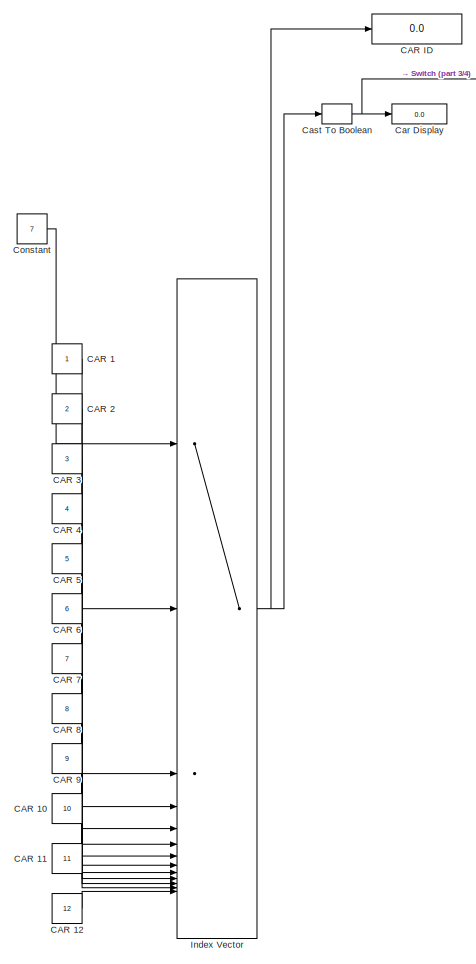
[diagram: root canvas - part 1/4, left side, full height]
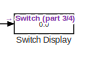
[diagram: root canvas - part 2/4, top left region]
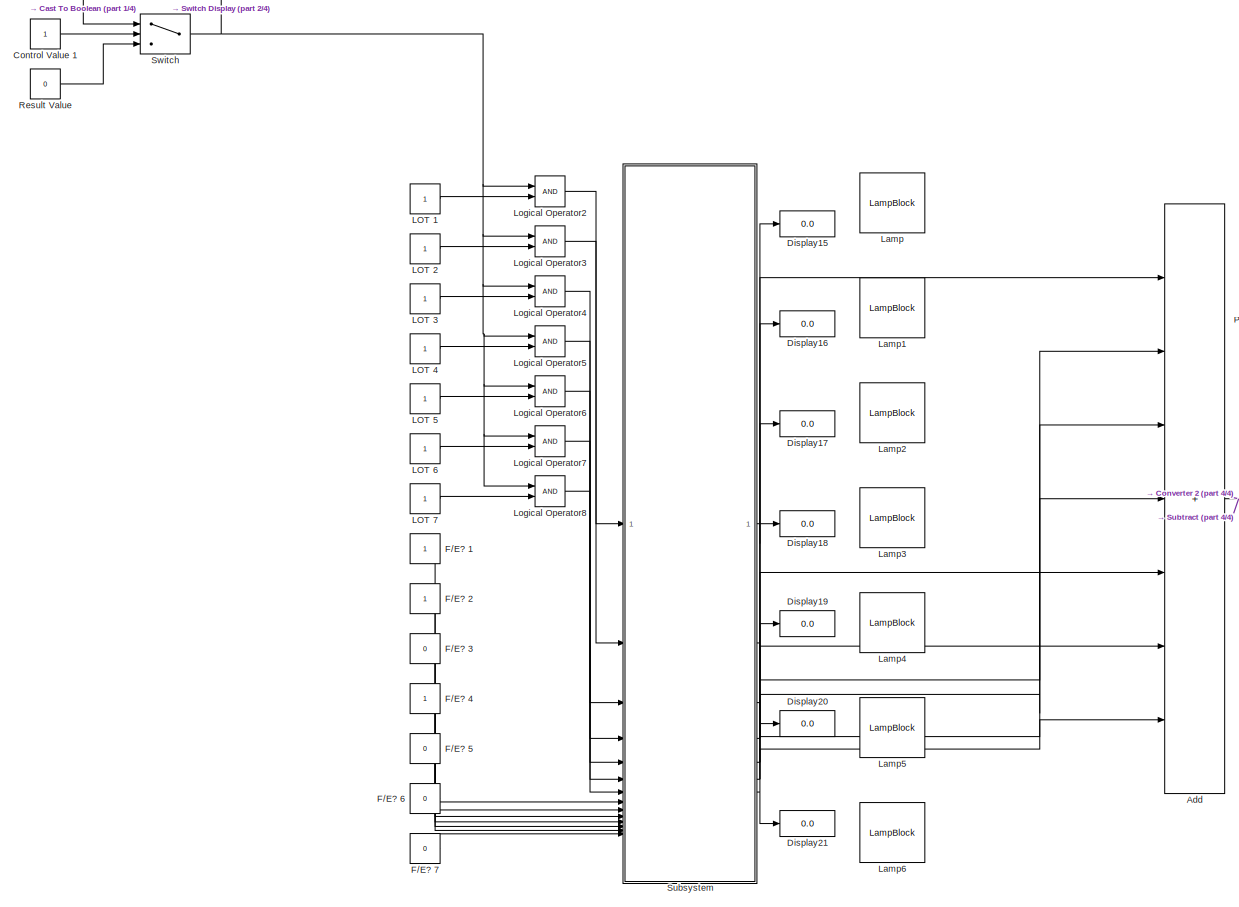
[diagram: root canvas - part 3/4, center side, full height]
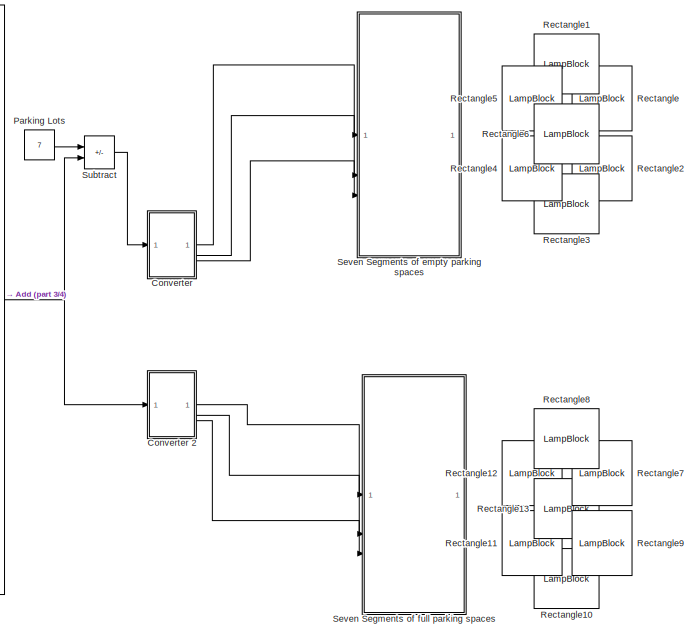
[diagram: root canvas - part 4/4, middle right region]
MODEL slx_5837f2981988
KIND model
CONFIG AbsTol = auto
CONFIG EnableMultiTasking = off
CONFIG FixedStep = auto
CONFIG MaxStep = auto
CONFIG MinStep = auto
CONFIG RelTol = 1e-3
CONFIG SampleTimeConstraint = Unconstrained
CONFIG SolverName = VariableStepAuto
CONFIG StartTime = 0.0
CONFIG StopTime = 10.0
BLOCK [Sum] Add
  IconShape = rectangular
  Inputs = +++++++
BLOCK [Constant] CAR 1
BLOCK [Constant] CAR 10
  Value = 10
BLOCK [Constant] CAR 11
  Value = 11
BLOCK [Constant] CAR 12
  Value = 12
BLOCK [Constant] CAR 2
  Value = 2
BLOCK [Constant] CAR 3
  Value = 3
BLOCK [Constant] CAR 4
  Value = 4
BLOCK [Constant] CAR 5
  Value = 5
BLOCK [Constant] CAR 6
  Value = 6
BLOCK [Constant] CAR 7
  Value = 7
BLOCK [Constant] CAR 8
  Value = 8
BLOCK [Constant] CAR 9
  Value = 9
BLOCK [Display] CAR ID 
  Decimation = 1
BLOCK [Display] Car Display
  Decimation = 1
BLOCK [DataTypeConversion] Cast To Boolean
  OutDataTypeStr = boolean
  RndMeth = Floor
  SaturateOnIntegerOverflow = off
BLOCK [Constant] Constant
  Value = 7
BLOCK [Constant] Control Value 1
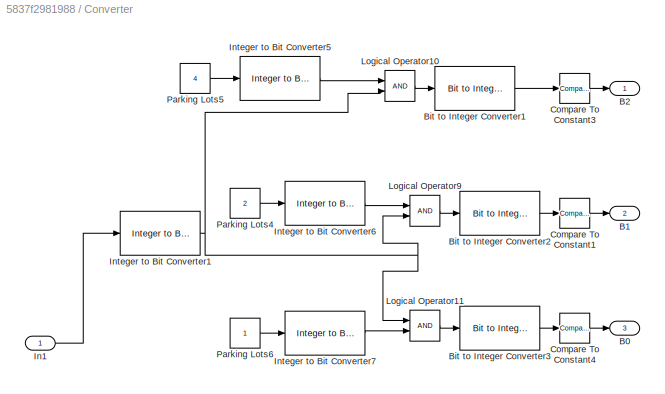
BLOCK [SubSystem] Converter
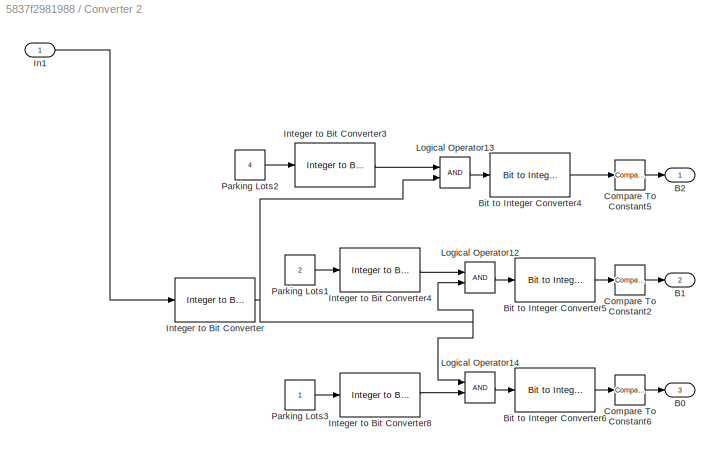
BLOCK [SubSystem] Converter 2
BLOCK [Outport] Converter 2/B0
  Port = 3
BLOCK [Outport] Converter 2/B1
  Port = 2
BLOCK [Outport] Converter 2/B2
BLOCK [Reference] Converter 2/Bit to Integer Converter4  REF=simulink/Logic and Bit
Operations/Bit to Integer
Converter
  SourceBlock = simulink/Logic and Bit\nOperations/Bit to Integer\nConverter
  SourceType = Bit to Integer Converter
BLOCK [Reference] Converter 2/Bit to Integer Converter5  REF=simulink/Logic and Bit
Operations/Bit to Integer
Converter
  SourceBlock = simulink/Logic and Bit\nOperations/Bit to Integer\nConverter
  SourceType = Bit to Integer Converter
BLOCK [Reference] Converter 2/Bit to Integer Converter6  REF=simulink/Logic and Bit
Operations/Bit to Integer
Converter
  SourceBlock = simulink/Logic and Bit\nOperations/Bit to Integer\nConverter
  SourceType = Bit to Integer Converter
BLOCK [Reference] Converter 2/Compare To Constant2  REF=simulink/Logic and Bit
Operations/Compare
To Constant
  SourceBlock = simulink/Logic and Bit\nOperations/Compare\nTo Constant
  SourceType = Compare To Constant
BLOCK [Reference] Converter 2/Compare To Constant5  REF=simulink/Logic and Bit
Operations/Compare
To Constant
  SourceBlock = simulink/Logic and Bit\nOperations/Compare\nTo Constant
  SourceType = Compare To Constant
BLOCK [Reference] Converter 2/Compare To Constant6  REF=simulink/Logic and Bit
Operations/Compare
To Constant
  SourceBlock = simulink/Logic and Bit\nOperations/Compare\nTo Constant
  SourceType = Compare To Constant
BLOCK [Inport] Converter 2/In1
BLOCK [Reference] Converter 2/Integer to Bit Converter  REF=simulink/Logic and Bit
Operations/Integer to Bit
Converter
  SourceBlock = simulink/Logic and Bit\nOperations/Integer to Bit\nConverter
  SourceType = Integer to Bit Converter
BLOCK [Reference] Converter 2/Integer to Bit Converter3  REF=simulink/Logic and Bit
Operations/Integer to Bit
Converter
  SourceBlock = simulink/Logic and Bit\nOperations/Integer to Bit\nConverter
  SourceType = Integer to Bit Converter
BLOCK [Reference] Converter 2/Integer to Bit Converter4  REF=simulink/Logic and Bit
Operations/Integer to Bit
Converter
  SourceBlock = simulink/Logic and Bit\nOperations/Integer to Bit\nConverter
  SourceType = Integer to Bit Converter
BLOCK [Reference] Converter 2/Integer to Bit Converter8  REF=simulink/Logic and Bit
Operations/Integer to Bit
Converter
  SourceBlock = simulink/Logic and Bit\nOperations/Integer to Bit\nConverter
  SourceType = Integer to Bit Converter
BLOCK [Logic] Converter 2/Logical Operator12
  AllPortsSameDT = off
  OutDataTypeStr = boolean
BLOCK [Logic] Converter 2/Logical Operator13
  AllPortsSameDT = off
  OutDataTypeStr = boolean
BLOCK [Logic] Converter 2/Logical Operator14
  AllPortsSameDT = off
  OutDataTypeStr = boolean
BLOCK [Constant] Converter 2/Parking Lots1
  Value = 2
BLOCK [Constant] Converter 2/Parking Lots2
  Value = 4
BLOCK [Constant] Converter 2/Parking Lots3
BLOCK [Outport] Converter/B0
  Port = 3
BLOCK [Outport] Converter/B1
  Port = 2
BLOCK [Outport] Converter/B2
BLOCK [Reference] Converter/Bit to Integer Converter1  REF=simulink/Logic and Bit
Operations/Bit to Integer
Converter
  SourceBlock = simulink/Logic and Bit\nOperations/Bit to Integer\nConverter
  SourceType = Bit to Integer Converter
BLOCK [Reference] Converter/Bit to Integer Converter2  REF=simulink/Logic and Bit
Operations/Bit to Integer
Converter
  SourceBlock = simulink/Logic and Bit\nOperations/Bit to Integer\nConverter
  SourceType = Bit to Integer Converter
BLOCK [Reference] Converter/Bit to Integer Converter3  REF=simulink/Logic and Bit
Operations/Bit to Integer
Converter
  SourceBlock = simulink/Logic and Bit\nOperations/Bit to Integer\nConverter
  SourceType = Bit to Integer Converter
BLOCK [Reference] Converter/Compare To Constant1  REF=simulink/Logic and Bit
Operations/Compare
To Constant
  SourceBlock = simulink/Logic and Bit\nOperations/Compare\nTo Constant
  SourceType = Compare To Constant
BLOCK [Reference] Converter/Compare To Constant3  REF=simulink/Logic and Bit
Operations/Compare
To Constant
  SourceBlock = simulink/Logic and Bit\nOperations/Compare\nTo Constant
  SourceType = Compare To Constant
BLOCK [Reference] Converter/Compare To Constant4  REF=simulink/Logic and Bit
Operations/Compare
To Constant
  SourceBlock = simulink/Logic and Bit\nOperations/Compare\nTo Constant
  SourceType = Compare To Constant
BLOCK [Inport] Converter/In1
BLOCK [Reference] Converter/Integer to Bit Converter1  REF=simulink/Logic and Bit
Operations/Integer to Bit
Converter
  SourceBlock = simulink/Logic and Bit\nOperations/Integer to Bit\nConverter
  SourceType = Integer to Bit Converter
BLOCK [Reference] Converter/Integer to Bit Converter5  REF=simulink/Logic and Bit
Operations/Integer to Bit
Converter
  SourceBlock = simulink/Logic and Bit\nOperations/Integer to Bit\nConverter
  SourceType = Integer to Bit Converter
BLOCK [Reference] Converter/Integer to Bit Converter6  REF=simulink/Logic and Bit
Operations/Integer to Bit
Converter
  SourceBlock = simulink/Logic and Bit\nOperations/Integer to Bit\nConverter
  SourceType = Integer to Bit Converter
BLOCK [Reference] Converter/Integer to Bit Converter7  REF=simulink/Logic and Bit
Operations/Integer to Bit
Converter
  SourceBlock = simulink/Logic and Bit\nOperations/Integer to Bit\nConverter
  SourceType = Integer to Bit Converter
BLOCK [Logic] Converter/Logical Operator10
  AllPortsSameDT = off
  OutDataTypeStr = boolean
BLOCK [Logic] Converter/Logical Operator11
  AllPortsSameDT = off
  OutDataTypeStr = boolean
BLOCK [Logic] Converter/Logical Operator9
  AllPortsSameDT = off
  OutDataTypeStr = boolean
BLOCK [Constant] Converter/Parking Lots4
  Value = 2
BLOCK [Constant] Converter/Parking Lots5
  Value = 4
BLOCK [Constant] Converter/Parking Lots6
BLOCK [Display] Display15
  Decimation = 1
BLOCK [Display] Display16
  Decimation = 1
BLOCK [Display] Display17
  Decimation = 1
BLOCK [Display] Display18
  Decimation = 1
BLOCK [Display] Display19
  Decimation = 1
BLOCK [Display] Display20
  Decimation = 1
BLOCK [Display] Display21
  Decimation = 1
BLOCK [Constant] F//E? 1
BLOCK [Constant] F//E? 2
BLOCK [Constant] F//E? 3
  Value = 0
BLOCK [Constant] F//E? 4
BLOCK [Constant] F//E? 5
  Value = 0
BLOCK [Constant] F//E? 6 
  Value = 0
BLOCK [Constant] F//E? 7
  Value = 0
BLOCK [MultiPortSwitch] Index Vector
  DataPortOrder = Zero-based contiguous
  InputSameDT = off
  Inputs = 12
  SaturateOnIntegerOverflow = off
  zeroidx = on
BLOCK [Constant] LOT 1
BLOCK [Constant] LOT 2
BLOCK [Constant] LOT 3
BLOCK [Constant] LOT 4
BLOCK [Constant] LOT 5
BLOCK [Constant] LOT 6
BLOCK [Constant] LOT 7
BLOCK [LampBlock] Lamp
  LabelPosition = Hide
BLOCK [LampBlock] Lamp1
  LabelPosition = Hide
BLOCK [LampBlock] Lamp2
  LabelPosition = Hide
BLOCK [LampBlock] Lamp3
  LabelPosition = Hide
BLOCK [LampBlock] Lamp4
  LabelPosition = Hide
BLOCK [LampBlock] Lamp5
  LabelPosition = Hide
BLOCK [LampBlock] Lamp6
  LabelPosition = Hide
BLOCK [Logic] Logical Operator2
  AllPortsSameDT = off
  OutDataTypeStr = boolean
BLOCK [Logic] Logical Operator3
  AllPortsSameDT = off
  OutDataTypeStr = boolean
BLOCK [Logic] Logical Operator4
  AllPortsSameDT = off
  OutDataTypeStr = boolean
BLOCK [Logic] Logical Operator5
  AllPortsSameDT = off
  OutDataTypeStr = boolean
BLOCK [Logic] Logical Operator6
  AllPortsSameDT = off
  OutDataTypeStr = boolean
BLOCK [Logic] Logical Operator7
  AllPortsSameDT = off
  OutDataTypeStr = boolean
BLOCK [Logic] Logical Operator8
  AllPortsSameDT = off
  OutDataTypeStr = boolean
BLOCK [Constant] Parking Lots
  Value = 7
BLOCK [LampBlock] Rectangle
  Icon = Rectangle
  LabelPosition = Hide
  NameLocation = left
BLOCK [LampBlock] Rectangle1
  Icon = Rectangle
  LabelPosition = Hide
BLOCK [LampBlock] Rectangle10
  Icon = Rectangle
  LabelPosition = Hide
BLOCK [LampBlock] Rectangle11
  Icon = Rectangle
  LabelPosition = Hide
  NameLocation = left
BLOCK [LampBlock] Rectangle12
  Icon = Rectangle
  LabelPosition = Hide
  NameLocation = left
BLOCK [LampBlock] Rectangle13
  Icon = Rectangle
  LabelPosition = Hide
BLOCK [LampBlock] Rectangle2
  Icon = Rectangle
  LabelPosition = Hide
  NameLocation = left
BLOCK [LampBlock] Rectangle3
  Icon = Rectangle
  LabelPosition = Hide
BLOCK [LampBlock] Rectangle4
  Icon = Rectangle
  LabelPosition = Hide
  NameLocation = left
BLOCK [LampBlock] Rectangle5
  Icon = Rectangle
  LabelPosition = Hide
  NameLocation = left
BLOCK [LampBlock] Rectangle6
  Icon = Rectangle
  LabelPosition = Hide
BLOCK [LampBlock] Rectangle7
  Icon = Rectangle
  LabelPosition = Hide
  NameLocation = left
BLOCK [LampBlock] Rectangle8
  Icon = Rectangle
  LabelPosition = Hide
BLOCK [LampBlock] Rectangle9
  Icon = Rectangle
  LabelPosition = Hide
  NameLocation = left
BLOCK [Constant] Result Value
  Value = 0
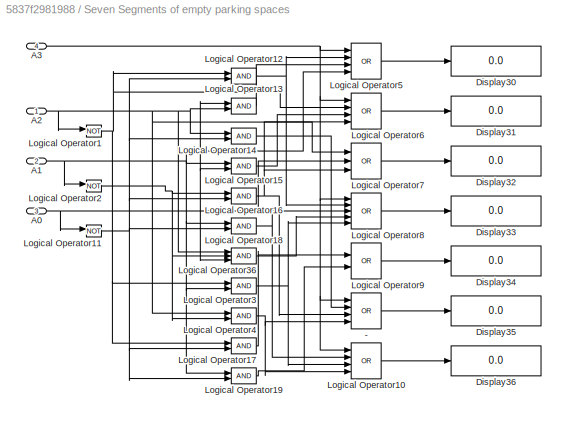
BLOCK [SubSystem] Seven Segments of empty parking spaces
BLOCK [Logic] Seven Segments of empty parking spaces/   -
  AllPortsSameDT = off
  Inputs = 4
  Operator = OR
  OutDataTypeStr = boolean
BLOCK [Inport] Seven Segments of empty parking spaces/A0
  Port = 3
BLOCK [Inport] Seven Segments of empty parking spaces/A1
  Port = 2
BLOCK [Inport] Seven Segments of empty parking spaces/A2
BLOCK [Inport] Seven Segments of empty parking spaces/A3
  Port = 4
BLOCK [Display] Seven Segments of empty parking spaces/Display30
  Decimation = 1
BLOCK [Display] Seven Segments of empty parking spaces/Display31
  Decimation = 1
BLOCK [Display] Seven Segments of empty parking spaces/Display32
  Decimation = 1
BLOCK [Display] Seven Segments of empty parking spaces/Display33
  Decimation = 1
BLOCK [Display] Seven Segments of empty parking spaces/Display34
  Decimation = 1
BLOCK [Display] Seven Segments of empty parking spaces/Display35
  Decimation = 1
BLOCK [Display] Seven Segments of empty parking spaces/Display36
  Decimation = 1
BLOCK [Logic] Seven Segments of empty parking spaces/Logical Operator1
  AllPortsSameDT = off
  Operator = NOT
  OutDataTypeStr = boolean
BLOCK [Logic] Seven Segments of empty parking spaces/Logical Operator10
  AllPortsSameDT = off
  Inputs = 4
  Operator = OR
  OutDataTypeStr = boolean
BLOCK [Logic] Seven Segments of empty parking spaces/Logical Operator11
  AllPortsSameDT = off
  Operator = NOT
  OutDataTypeStr = boolean
BLOCK [Logic] Seven Segments of empty parking spaces/Logical Operator12
  AllPortsSameDT = off
  OutDataTypeStr = boolean
BLOCK [Logic] Seven Segments of empty parking spaces/Logical Operator13
  AllPortsSameDT = off
  OutDataTypeStr = boolean
BLOCK [Logic] Seven Segments of empty parking spaces/Logical Operator14
  AllPortsSameDT = off
  OutDataTypeStr = boolean
BLOCK [Logic] Seven Segments of empty parking spaces/Logical Operator15
  AllPortsSameDT = off
  OutDataTypeStr = boolean
BLOCK [Logic] Seven Segments of empty parking spaces/Logical Operator16
  AllPortsSameDT = off
  OutDataTypeStr = boolean
BLOCK [Logic] Seven Segments of empty parking spaces/Logical Operator17
  AllPortsSameDT = off
  OutDataTypeStr = boolean
BLOCK [Logic] Seven Segments of empty parking spaces/Logical Operator18
  AllPortsSameDT = off
  OutDataTypeStr = boolean
BLOCK [Logic] Seven Segments of empty parking spaces/Logical Operator19
  AllPortsSameDT = off
  OutDataTypeStr = boolean
BLOCK [Logic] Seven Segments of empty parking spaces/Logical Operator2
  AllPortsSameDT = off
  Operator = NOT
  OutDataTypeStr = boolean
BLOCK [Logic] Seven Segments of empty parking spaces/Logical Operator3
  AllPortsSameDT = off
  OutDataTypeStr = boolean
BLOCK [Logic] Seven Segments of empty parking spaces/Logical Operator36
  AllPortsSameDT = off
  Inputs = 3
  OutDataTypeStr = boolean
BLOCK [Logic] Seven Segments of empty parking spaces/Logical Operator4
  AllPortsSameDT = off
  OutDataTypeStr = boolean
BLOCK [Logic] Seven Segments of empty parking spaces/Logical Operator5
  AllPortsSameDT = off
  Inputs = 4
  Operator = OR
  OutDataTypeStr = boolean
BLOCK [Logic] Seven Segments of empty parking spaces/Logical Operator6
  AllPortsSameDT = off
  Inputs = 4
  Operator = OR
  OutDataTypeStr = boolean
BLOCK [Logic] Seven Segments of empty parking spaces/Logical Operator7
  AllPortsSameDT = off
  Inputs = 3
  Operator = OR
  OutDataTypeStr = boolean
BLOCK [Logic] Seven Segments of empty parking spaces/Logical Operator8
  AllPortsSameDT = off
  Inputs = 5
  Operator = OR
  OutDataTypeStr = boolean
BLOCK [Logic] Seven Segments of empty parking spaces/Logical Operator9
  AllPortsSameDT = off
  Operator = OR
  OutDataTypeStr = boolean
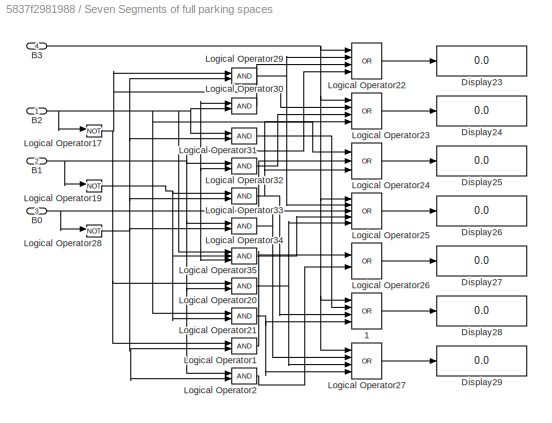
BLOCK [SubSystem] Seven Segments of full parking spaces
BLOCK [Logic] Seven Segments of full parking spaces/   1
  AllPortsSameDT = off
  Inputs = 4
  Operator = OR
  OutDataTypeStr = boolean
BLOCK [Inport] Seven Segments of full parking spaces/B0
  Port = 3
BLOCK [Inport] Seven Segments of full parking spaces/B1
  Port = 2
BLOCK [Inport] Seven Segments of full parking spaces/B2
BLOCK [Inport] Seven Segments of full parking spaces/B3
  Port = 4
BLOCK [Display] Seven Segments of full parking spaces/Display23
  Decimation = 1
BLOCK [Display] Seven Segments of full parking spaces/Display24
  Decimation = 1
BLOCK [Display] Seven Segments of full parking spaces/Display25
  Decimation = 1
BLOCK [Display] Seven Segments of full parking spaces/Display26
  Decimation = 1
BLOCK [Display] Seven Segments of full parking spaces/Display27
  Decimation = 1
BLOCK [Display] Seven Segments of full parking spaces/Display28
  Decimation = 1
BLOCK [Display] Seven Segments of full parking spaces/Display29
  Decimation = 1
BLOCK [Logic] Seven Segments of full parking spaces/Logical Operator1
  AllPortsSameDT = off
  OutDataTypeStr = boolean
BLOCK [Logic] Seven Segments of full parking spaces/Logical Operator17
  AllPortsSameDT = off
  Operator = NOT
  OutDataTypeStr = boolean
BLOCK [Logic] Seven Segments of full parking spaces/Logical Operator19
  AllPortsSameDT = off
  Operator = NOT
  OutDataTypeStr = boolean
BLOCK [Logic] Seven Segments of full parking spaces/Logical Operator2
  AllPortsSameDT = off
  OutDataTypeStr = boolean
BLOCK [Logic] Seven Segments of full parking spaces/Logical Operator20
  AllPortsSameDT = off
  OutDataTypeStr = boolean
BLOCK [Logic] Seven Segments of full parking spaces/Logical Operator21
  AllPortsSameDT = off
  OutDataTypeStr = boolean
BLOCK [Logic] Seven Segments of full parking spaces/Logical Operator22
  AllPortsSameDT = off
  Inputs = 4
  Operator = OR
  OutDataTypeStr = boolean
BLOCK [Logic] Seven Segments of full parking spaces/Logical Operator23
  AllPortsSameDT = off
  Inputs = 4
  Operator = OR
  OutDataTypeStr = boolean
BLOCK [Logic] Seven Segments of full parking spaces/Logical Operator24
  AllPortsSameDT = off
  Inputs = 3
  Operator = OR
  OutDataTypeStr = boolean
BLOCK [Logic] Seven Segments of full parking spaces/Logical Operator25
  AllPortsSameDT = off
  Inputs = 5
  Operator = OR
  OutDataTypeStr = boolean
BLOCK [Logic] Seven Segments of full parking spaces/Logical Operator26
  AllPortsSameDT = off
  Operator = OR
  OutDataTypeStr = boolean
BLOCK [Logic] Seven Segments of full parking spaces/Logical Operator27
  AllPortsSameDT = off
  Inputs = 4
  Operator = OR
  OutDataTypeStr = boolean
BLOCK [Logic] Seven Segments of full parking spaces/Logical Operator28
  AllPortsSameDT = off
  Operator = NOT
  OutDataTypeStr = boolean
BLOCK [Logic] Seven Segments of full parking spaces/Logical Operator29
  AllPortsSameDT = off
  OutDataTypeStr = boolean
BLOCK [Logic] Seven Segments of full parking spaces/Logical Operator30
  AllPortsSameDT = off
  OutDataTypeStr = boolean
BLOCK [Logic] Seven Segments of full parking spaces/Logical Operator31
  AllPortsSameDT = off
  OutDataTypeStr = boolean
BLOCK [Logic] Seven Segments of full parking spaces/Logical Operator32
  AllPortsSameDT = off
  OutDataTypeStr = boolean
BLOCK [Logic] Seven Segments of full parking spaces/Logical Operator33
  AllPortsSameDT = off
  OutDataTypeStr = boolean
BLOCK [Logic] Seven Segments of full parking spaces/Logical Operator34
  AllPortsSameDT = off
  OutDataTypeStr = boolean
BLOCK [Logic] Seven Segments of full parking spaces/Logical Operator35
  AllPortsSameDT = off
  Inputs = 3
  OutDataTypeStr = boolean
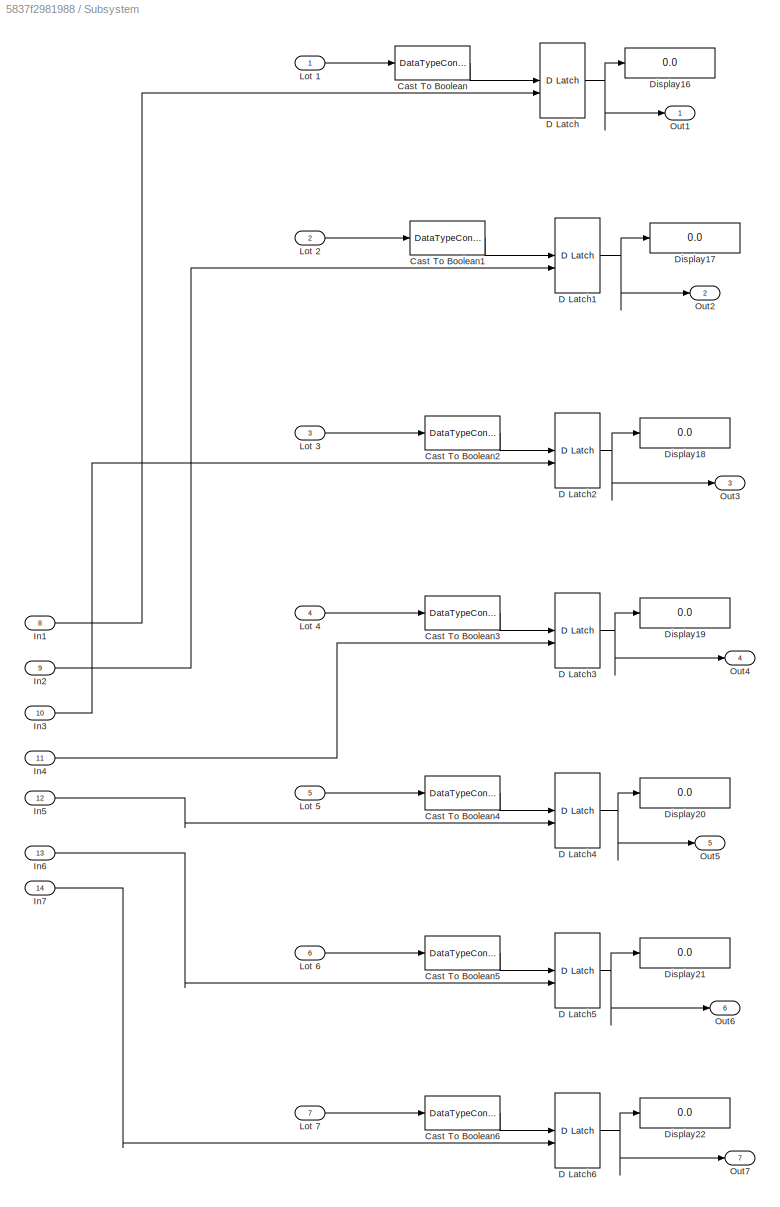
BLOCK [SubSystem] Subsystem
BLOCK [DataTypeConversion] Subsystem/Cast To Boolean
  OutDataTypeStr = boolean
  RndMeth = Floor
  SaturateOnIntegerOverflow = off
BLOCK [DataTypeConversion] Subsystem/Cast To Boolean1
  OutDataTypeStr = boolean
  RndMeth = Floor
  SaturateOnIntegerOverflow = off
BLOCK [DataTypeConversion] Subsystem/Cast To Boolean2
  OutDataTypeStr = boolean
  RndMeth = Floor
  SaturateOnIntegerOverflow = off
BLOCK [DataTypeConversion] Subsystem/Cast To Boolean3
  OutDataTypeStr = boolean
  RndMeth = Floor
  SaturateOnIntegerOverflow = off
BLOCK [DataTypeConversion] Subsystem/Cast To Boolean4
  OutDataTypeStr = boolean
  RndMeth = Floor
  SaturateOnIntegerOverflow = off
BLOCK [DataTypeConversion] Subsystem/Cast To Boolean5
  OutDataTypeStr = boolean
  RndMeth = Floor
  SaturateOnIntegerOverflow = off
BLOCK [DataTypeConversion] Subsystem/Cast To Boolean6
  OutDataTypeStr = boolean
  RndMeth = Floor
  SaturateOnIntegerOverflow = off
BLOCK [Reference] Subsystem/D Latch  REF=simulink_extras/Flip Flops/D Latch
  SourceBlock = simulink_extras/Flip Flops/D Latch
  SourceType = DLatch
BLOCK [Reference] Subsystem/D Latch1  REF=simulink_extras/Flip Flops/D Latch
  SourceBlock = simulink_extras/Flip Flops/D Latch
  SourceType = DLatch
BLOCK [Reference] Subsystem/D Latch2  REF=simulink_extras/Flip Flops/D Latch
  SourceBlock = simulink_extras/Flip Flops/D Latch
  SourceType = DLatch
BLOCK [Reference] Subsystem/D Latch3  REF=simulink_extras/Flip Flops/D Latch
  SourceBlock = simulink_extras/Flip Flops/D Latch
  SourceType = DLatch
BLOCK [Reference] Subsystem/D Latch4  REF=simulink_extras/Flip Flops/D Latch
  SourceBlock = simulink_extras/Flip Flops/D Latch
  SourceType = DLatch
BLOCK [Reference] Subsystem/D Latch5  REF=simulink_extras/Flip Flops/D Latch
  SourceBlock = simulink_extras/Flip Flops/D Latch
  SourceType = DLatch
BLOCK [Reference] Subsystem/D Latch6  REF=simulink_extras/Flip Flops/D Latch
  SourceBlock = simulink_extras/Flip Flops/D Latch
  SourceType = DLatch
BLOCK [Display] Subsystem/Display16
  Decimation = 1
BLOCK [Display] Subsystem/Display17
  Decimation = 1
BLOCK [Display] Subsystem/Display18
  Decimation = 1
BLOCK [Display] Subsystem/Display19
  Decimation = 1
BLOCK [Display] Subsystem/Display20
  Decimation = 1
BLOCK [Display] Subsystem/Display21
  Decimation = 1
BLOCK [Display] Subsystem/Display22
  Decimation = 1
BLOCK [Inport] Subsystem/In1
  Port = 8
BLOCK [Inport] Subsystem/In2
  Port = 9
BLOCK [Inport] Subsystem/In3
  Port = 10
BLOCK [Inport] Subsystem/In4
  Port = 11
BLOCK [Inport] Subsystem/In5
  Port = 12
BLOCK [Inport] Subsystem/In6
  Port = 13
BLOCK [Inport] Subsystem/In7
  Port = 14
BLOCK [Inport] Subsystem/Lot 1
BLOCK [Inport] Subsystem/Lot 2
  Port = 2
BLOCK [Inport] Subsystem/Lot 3
  Port = 3
BLOCK [Inport] Subsystem/Lot 4
  Port = 4
BLOCK [Inport] Subsystem/Lot 5
  Port = 5
BLOCK [Inport] Subsystem/Lot 6
  Port = 6
BLOCK [Inport] Subsystem/Lot 7
  Port = 7
BLOCK [Outport] Subsystem/Out1
BLOCK [Outport] Subsystem/Out2
  Port = 2
BLOCK [Outport] Subsystem/Out3
  Port = 3
BLOCK [Outport] Subsystem/Out4
  Port = 4
BLOCK [Outport] Subsystem/Out5
  Port = 5
BLOCK [Outport] Subsystem/Out6
  Port = 6
BLOCK [Outport] Subsystem/Out7
  Port = 7
BLOCK [Sum] Subtract
  IconShape = rectangular
  Inputs = +-
BLOCK [Switch] Switch
  Criteria = u2 > Threshold
  InputSameDT = off
  SaturateOnIntegerOverflow = off
BLOCK [Display] Switch Display
  Decimation = 1
NET Add:1 -> Converter 2:1, Subtract:2
LINE CAR 10:1 -> Index Vector:11
LINE CAR 11:1 -> Index Vector:12
LINE CAR 12:1 -> Index Vector:13
LINE CAR 1:1 -> Index Vector:2
LINE CAR 2:1 -> Index Vector:3
LINE CAR 3:1 -> Index Vector:4
LINE CAR 4:1 -> Index Vector:5
LINE CAR 5:1 -> Index Vector:6
LINE CAR 6:1 -> Index Vector:7
LINE CAR 7:1 -> Index Vector:8
LINE CAR 8:1 -> Index Vector:9
LINE CAR 9:1 -> Index Vector:10
NET Cast To Boolean:1 -> Car Display:1, Switch:1
LINE Constant:1 -> Index Vector:1
LINE Control Value 1:1 -> Switch:2
LINE Converter 2/Bit to Integer Converter4:1 -> Converter 2/Compare To Constant5:1
LINE Converter 2/Bit to Integer Converter5:1 -> Converter 2/Compare To Constant2:1
LINE Converter 2/Bit to Integer Converter6:1 -> Converter 2/Compare To Constant6:1
LINE Converter 2/Compare To Constant2:1 -> Converter 2/B1:1
LINE Converter 2/Compare To Constant5:1 -> Converter 2/B2:1
LINE Converter 2/Compare To Constant6:1 -> Converter 2/B0:1
LINE Converter 2/In1:1 -> Converter 2/Integer to Bit Converter:1
LINE Converter 2/Integer to Bit Converter3:1 -> Converter 2/Logical Operator13:1
LINE Converter 2/Integer to Bit Converter4:1 -> Converter 2/Logical Operator12:1
LINE Converter 2/Integer to Bit Converter8:1 -> Converter 2/Logical Operator14:2
NET Converter 2/Integer to Bit Converter:1 -> Converter 2/Logical Operator12:2, Converter 2/Logical Operator13:2, Converter 2/Logical Operator14:1
LINE Converter 2/Logical Operator12:1 -> Converter 2/Bit to Integer Converter5:1
LINE Converter 2/Logical Operator13:1 -> Converter 2/Bit to Integer Converter4:1
LINE Converter 2/Logical Operator14:1 -> Converter 2/Bit to Integer Converter6:1
LINE Converter 2/Parking Lots1:1 -> Converter 2/Integer to Bit Converter4:1
LINE Converter 2/Parking Lots2:1 -> Converter 2/Integer to Bit Converter3:1
LINE Converter 2/Parking Lots3:1 -> Converter 2/Integer to Bit Converter8:1
LINE Converter 2:1 -> Seven Segments of full parking spaces:1
LINE Converter 2:2 -> Seven Segments of full parking spaces:2
LINE Converter 2:3 -> Seven Segments of full parking spaces:3
LINE Converter/Bit to Integer Converter1:1 -> Converter/Compare To Constant3:1
LINE Converter/Bit to Integer Converter2:1 -> Converter/Compare To Constant1:1
LINE Converter/Bit to Integer Converter3:1 -> Converter/Compare To Constant4:1
LINE Converter/Compare To Constant1:1 -> Converter/B1:1
LINE Converter/Compare To Constant3:1 -> Converter/B2:1
LINE Converter/Compare To Constant4:1 -> Converter/B0:1
LINE Converter/In1:1 -> Converter/Integer to Bit Converter1:1
NET Converter/Integer to Bit Converter1:1 -> Converter/Logical Operator10:2, Converter/Logical Operator11:1, Converter/Logical Operator9:2
LINE Converter/Integer to Bit Converter5:1 -> Converter/Logical Operator10:1
LINE Converter/Integer to Bit Converter6:1 -> Converter/Logical Operator9:1
LINE Converter/Integer to Bit Converter7:1 -> Converter/Logical Operator11:2
LINE Converter/Logical Operator10:1 -> Converter/Bit to Integer Converter1:1
LINE Converter/Logical Operator11:1 -> Converter/Bit to Integer Converter3:1
LINE Converter/Logical Operator9:1 -> Converter/Bit to Integer Converter2:1
LINE Converter/Parking Lots4:1 -> Converter/Integer to Bit Converter6:1
LINE Converter/Parking Lots5:1 -> Converter/Integer to Bit Converter5:1
LINE Converter/Parking Lots6:1 -> Converter/Integer to Bit Converter7:1
LINE Converter:1 -> Seven Segments of empty parking spaces:1
LINE Converter:2 -> Seven Segments of empty parking spaces:2
LINE Converter:3 -> Seven Segments of empty parking spaces:3
LINE F//E? 1:1 -> Subsystem:8
LINE F//E? 2:1 -> Subsystem:9
LINE F//E? 3:1 -> Subsystem:10
LINE F//E? 4:1 -> Subsystem:11
LINE F//E? 5:1 -> Subsystem:12
LINE F//E? 6 :1 -> Subsystem:13
LINE F//E? 7:1 -> Subsystem:14
NET Index Vector:1 -> CAR ID :1, Cast To Boolean:1
LINE LOT 1:1 -> Logical Operator2:2
LINE LOT 2:1 -> Logical Operator3:2
LINE LOT 3:1 -> Logical Operator4:2
LINE LOT 4:1 -> Logical Operator5:2
LINE LOT 5:1 -> Logical Operator6:2
LINE LOT 6:1 -> Logical Operator7:2
LINE LOT 7:1 -> Logical Operator8:2
LINE Logical Operator2:1 -> Subsystem:1
LINE Logical Operator3:1 -> Subsystem:2
LINE Logical Operator4:1 -> Subsystem:3
LINE Logical Operator5:1 -> Subsystem:4
LINE Logical Operator6:1 -> Subsystem:5
LINE Logical Operator7:1 -> Subsystem:6
LINE Logical Operator8:1 -> Subsystem:7
LINE Parking Lots:1 -> Subtract:1
LINE Result Value:1 -> Switch:3
LINE Seven Segments of empty parking spaces/   -:1 -> Seven Segments of empty parking spaces/Display35:1
NET Seven Segments of empty parking spaces/A0:1 -> Seven Segments of empty parking spaces/Logical Operator11:1, Seven Segments of empty parking spaces/Logical Operator13:1, Seven Segments of empty parking spaces/Logical Operator15:2, Seven Segments of empty parking spaces/Logical Operator36:3, Seven Segments of empty parking spaces/Logical Operator7:2
NET Seven Segments of empty parking spaces/A1:1 -> Seven Segments of empty parking spaces/Logical Operator15:1, Seven Segments of empty parking spaces/Logical Operator18:1, Seven Segments of empty parking spaces/Logical Operator19:1, Seven Segments of empty parking spaces/Logical Operator2:1, Seven Segments of empty parking spaces/Logical Operator3:2, Seven Segments of empty parking spaces/Logical Operator5:4
NET Seven Segments of empty parking spaces/A2:1 -> Seven Segments of empty parking spaces/Logical Operator13:2, Seven Segments of empty parking spaces/Logical Operator14:1, Seven Segments of empty parking spaces/Logical Operator1:1, Seven Segments of empty parking spaces/Logical Operator36:1, Seven Segments of empty parking spaces/Logical Operator4:1, Seven Segments of empty parking spaces/Logical Operator7:1
NET Seven Segments of empty parking spaces/A3:1 -> Seven Segments of empty parking spaces/   -:1, Seven Segments of empty parking spaces/Logical Operator10:1, Seven Segments of empty parking spaces/Logical Operator5:1, Seven Segments of empty parking spaces/Logical Operator6:1, Seven Segments of empty parking spaces/Logical Operator8:1
LINE Seven Segments of empty parking spaces/Logical Operator10:1 -> Seven Segments of empty parking spaces/Display36:1
NET Seven Segments of empty parking spaces/Logical Operator11:1 -> Seven Segments of empty parking spaces/Logical Operator12:2, Seven Segments of empty parking spaces/Logical Operator14:2, Seven Segments of empty parking spaces/Logical Operator16:2, Seven Segments of empty parking spaces/Logical Operator17:2, Seven Segments of empty parking spaces/Logical Operator18:2, Seven Segments of empty parking spaces/Logical Operator19:2
NET Seven Segments of empty parking spaces/Logical Operator12:1 -> Seven Segments of empty parking spaces/Logical Operator5:2, Seven Segments of empty parking spaces/Logical Operator8:2
LINE Seven Segments of empty parking spaces/Logical Operator13:1 -> Seven Segments of empty parking spaces/Logical Operator5:3
LINE Seven Segments of empty parking spaces/Logical Operator14:1 -> Seven Segments of empty parking spaces/   -:2
LINE Seven Segments of empty parking spaces/Logical Operator15:1 -> Seven Segments of empty parking spaces/Logical Operator6:3
NET Seven Segments of empty parking spaces/Logical Operator16:1 -> Seven Segments of empty parking spaces/   -:3, Seven Segments of empty parking spaces/Logical Operator6:4, Seven Segments of empty parking spaces/Logical Operator7:3
LINE Seven Segments of empty parking spaces/Logical Operator17:1 -> Seven Segments of empty parking spaces/Logical Operator9:1
NET Seven Segments of empty parking spaces/Logical Operator18:1 -> Seven Segments of empty parking spaces/Logical Operator10:2, Seven Segments of empty parking spaces/Logical Operator8:3
LINE Seven Segments of empty parking spaces/Logical Operator19:1 -> Seven Segments of empty parking spaces/Logical Operator9:2
NET Seven Segments of empty parking spaces/Logical Operator1:1 -> Seven Segments of empty parking spaces/Logical Operator12:1, Seven Segments of empty parking spaces/Logical Operator17:1, Seven Segments of empty parking spaces/Logical Operator3:1, Seven Segments of empty parking spaces/Logical Operator6:2
NET Seven Segments of empty parking spaces/Logical Operator2:1 -> Seven Segments of empty parking spaces/Logical Operator16:1, Seven Segments of empty parking spaces/Logical Operator36:2, Seven Segments of empty parking spaces/Logical Operator4:2
LINE Seven Segments of empty parking spaces/Logical Operator36:1 -> Seven Segments of empty parking spaces/Logical Operator8:4
NET Seven Segments of empty parking spaces/Logical Operator3:1 -> Seven Segments of empty parking spaces/Logical Operator10:3, Seven Segments of empty parking spaces/Logical Operator8:5
NET Seven Segments of empty parking spaces/Logical Operator4:1 -> Seven Segments of empty parking spaces/   -:4, Seven Segments of empty parking spaces/Logical Operator10:4
LINE Seven Segments of empty parking spaces/Logical Operator5:1 -> Seven Segments of empty parking spaces/Display30:1
LINE Seven Segments of empty parking spaces/Logical Operator6:1 -> Seven Segments of empty parking spaces/Display31:1
LINE Seven Segments of empty parking spaces/Logical Operator7:1 -> Seven Segments of empty parking spaces/Display32:1
LINE Seven Segments of empty parking spaces/Logical Operator8:1 -> Seven Segments of empty parking spaces/Display33:1
LINE Seven Segments of empty parking spaces/Logical Operator9:1 -> Seven Segments of empty parking spaces/Display34:1
LINE Seven Segments of full parking spaces/   1:1 -> Seven Segments of full parking spaces/Display28:1
NET Seven Segments of full parking spaces/B0:1 -> Seven Segments of full parking spaces/Logical Operator24:2, Seven Segments of full parking spaces/Logical Operator28:1, Seven Segments of full parking spaces/Logical Operator30:1, Seven Segments of full parking spaces/Logical Operator32:2, Seven Segments of full parking spaces/Logical Operator35:3
NET Seven Segments of full parking spaces/B1:1 -> Seven Segments of full parking spaces/Logical Operator19:1, Seven Segments of full parking spaces/Logical Operator20:2, Seven Segments of full parking spaces/Logical Operator22:4, Seven Segments of full parking spaces/Logical Operator2:1, Seven Segments of full parking spaces/Logical Operator32:1, Seven Segments of full parking spaces/Logical Operator34:1
NET Seven Segments of full parking spaces/B2:1 -> Seven Segments of full parking spaces/Logical Operator17:1, Seven Segments of full parking spaces/Logical Operator21:1, Seven Segments of full parking spaces/Logical Operator24:1, Seven Segments of full parking spaces/Logical Operator30:2, Seven Segments of full parking spaces/Logical Operator31:1, Seven Segments of full parking spaces/Logical Operator35:1
NET Seven Segments of full parking spaces/B3:1 -> Seven Segments of full parking spaces/   1:1, Seven Segments of full parking spaces/Logical Operator22:1, Seven Segments of full parking spaces/Logical Operator23:1, Seven Segments of full parking spaces/Logical Operator25:1, Seven Segments of full parking spaces/Logical Operator27:1
NET Seven Segments of full parking spaces/Logical Operator17:1 -> Seven Segments of full parking spaces/Logical Operator1:1, Seven Segments of full parking spaces/Logical Operator20:1, Seven Segments of full parking spaces/Logical Operator23:2, Seven Segments of full parking spaces/Logical Operator29:1
NET Seven Segments of full parking spaces/Logical Operator19:1 -> Seven Segments of full parking spaces/Logical Operator21:2, Seven Segments of full parking spaces/Logical Operator33:1, Seven Segments of full parking spaces/Logical Operator35:2
LINE Seven Segments of full parking spaces/Logical Operator1:1 -> Seven Segments of full parking spaces/Logical Operator26:1
NET Seven Segments of full parking spaces/Logical Operator20:1 -> Seven Segments of full parking spaces/Logical Operator25:5, Seven Segments of full parking spaces/Logical Operator27:3
NET Seven Segments of full parking spaces/Logical Operator21:1 -> Seven Segments of full parking spaces/   1:4, Seven Segments of full parking spaces/Logical Operator27:4
LINE Seven Segments of full parking spaces/Logical Operator22:1 -> Seven Segments of full parking spaces/Display23:1
LINE Seven Segments of full parking spaces/Logical Operator23:1 -> Seven Segments of full parking spaces/Display24:1
LINE Seven Segments of full parking spaces/Logical Operator24:1 -> Seven Segments of full parking spaces/Display25:1
LINE Seven Segments of full parking spaces/Logical Operator25:1 -> Seven Segments of full parking spaces/Display26:1
LINE Seven Segments of full parking spaces/Logical Operator26:1 -> Seven Segments of full parking spaces/Display27:1
LINE Seven Segments of full parking spaces/Logical Operator27:1 -> Seven Segments of full parking spaces/Display29:1
NET Seven Segments of full parking spaces/Logical Operator28:1 -> Seven Segments of full parking spaces/Logical Operator1:2, Seven Segments of full parking spaces/Logical Operator29:2, Seven Segments of full parking spaces/Logical Operator2:2, Seven Segments of full parking spaces/Logical Operator31:2, Seven Segments of full parking spaces/Logical Operator33:2, Seven Segments of full parking spaces/Logical Operator34:2
NET Seven Segments of full parking spaces/Logical Operator29:1 -> Seven Segments of full parking spaces/Logical Operator22:2, Seven Segments of full parking spaces/Logical Operator25:2
LINE Seven Segments of full parking spaces/Logical Operator2:1 -> Seven Segments of full parking spaces/Logical Operator26:2
LINE Seven Segments of full parking spaces/Logical Operator30:1 -> Seven Segments of full parking spaces/Logical Operator22:3
LINE Seven Segments of full parking spaces/Logical Operator31:1 -> Seven Segments of full parking spaces/   1:2
LINE Seven Segments of full parking spaces/Logical Operator32:1 -> Seven Segments of full parking spaces/Logical Operator23:3
NET Seven Segments of full parking spaces/Logical Operator33:1 -> Seven Segments of full parking spaces/   1:3, Seven Segments of full parking spaces/Logical Operator23:4, Seven Segments of full parking spaces/Logical Operator24:3
NET Seven Segments of full parking spaces/Logical Operator34:1 -> Seven Segments of full parking spaces/Logical Operator25:3, Seven Segments of full parking spaces/Logical Operator27:2
LINE Seven Segments of full parking spaces/Logical Operator35:1 -> Seven Segments of full parking spaces/Logical Operator25:4
LINE Subsystem/Cast To Boolean1:1 -> Subsystem/D Latch1:1
LINE Subsystem/Cast To Boolean2:1 -> Subsystem/D Latch2:1
LINE Subsystem/Cast To Boolean3:1 -> Subsystem/D Latch3:1
LINE Subsystem/Cast To Boolean4:1 -> Subsystem/D Latch4:1
LINE Subsystem/Cast To Boolean5:1 -> Subsystem/D Latch5:1
LINE Subsystem/Cast To Boolean6:1 -> Subsystem/D Latch6:1
LINE Subsystem/Cast To Boolean:1 -> Subsystem/D Latch:1
NET Subsystem/D Latch1:1 -> Subsystem/Display17:1, Subsystem/Out2:1
NET Subsystem/D Latch2:1 -> Subsystem/Display18:1, Subsystem/Out3:1
NET Subsystem/D Latch3:1 -> Subsystem/Display19:1, Subsystem/Out4:1
NET Subsystem/D Latch4:1 -> Subsystem/Display20:1, Subsystem/Out5:1
NET Subsystem/D Latch5:1 -> Subsystem/Display21:1, Subsystem/Out6:1
NET Subsystem/D Latch6:1 -> Subsystem/Display22:1, Subsystem/Out7:1
NET Subsystem/D Latch:1 -> Subsystem/Display16:1, Subsystem/Out1:1
LINE Subsystem/In1:1 -> Subsystem/D Latch:2
LINE Subsystem/In2:1 -> Subsystem/D Latch1:2
LINE Subsystem/In3:1 -> Subsystem/D Latch2:2
LINE Subsystem/In4:1 -> Subsystem/D Latch3:2
LINE Subsystem/In5:1 -> Subsystem/D Latch4:2
LINE Subsystem/In6:1 -> Subsystem/D Latch5:2
LINE Subsystem/In7:1 -> Subsystem/D Latch6:2
LINE Subsystem/Lot 1:1 -> Subsystem/Cast To Boolean:1
LINE Subsystem/Lot 2:1 -> Subsystem/Cast To Boolean1:1
LINE Subsystem/Lot 3:1 -> Subsystem/Cast To Boolean2:1
LINE Subsystem/Lot 4:1 -> Subsystem/Cast To Boolean3:1
LINE Subsystem/Lot 5:1 -> Subsystem/Cast To Boolean4:1
LINE Subsystem/Lot 6:1 -> Subsystem/Cast To Boolean5:1
LINE Subsystem/Lot 7:1 -> Subsystem/Cast To Boolean6:1
NET Subsystem:1 -> Add:1, Display15:1
NET Subsystem:2 -> Add:2, Display16:1
NET Subsystem:3 -> Add:3, Display17:1
NET Subsystem:4 -> Add:4, Display18:1
NET Subsystem:5 -> Add:5, Display19:1
NET Subsystem:6 -> Add:6, Display20:1
NET Subsystem:7 -> Add:7, Display21:1
LINE Subtract:1 -> Converter:1
NET Switch:1 -> Logical Operator2:1, Logical Operator3:1, Logical Operator4:1, Logical Operator5:1, Logical Operator6:1, Logical Operator7:1, Logical Operator8:1, Switch Display:1
note: NET lines group one-source signal fan-out (src -> all destinations, sorted); 1:1 wires keep LINE
